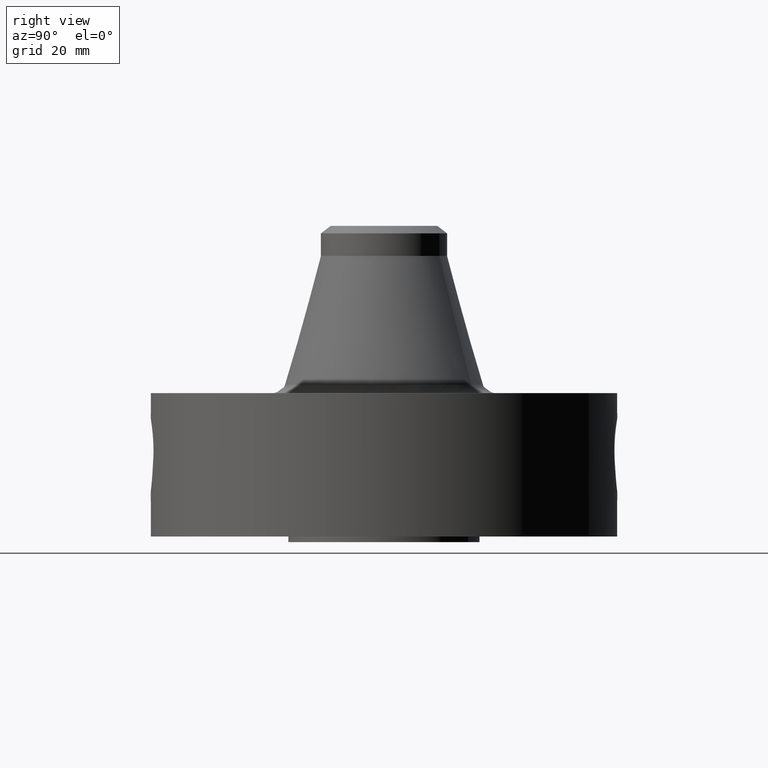
[diagram: clean part render]
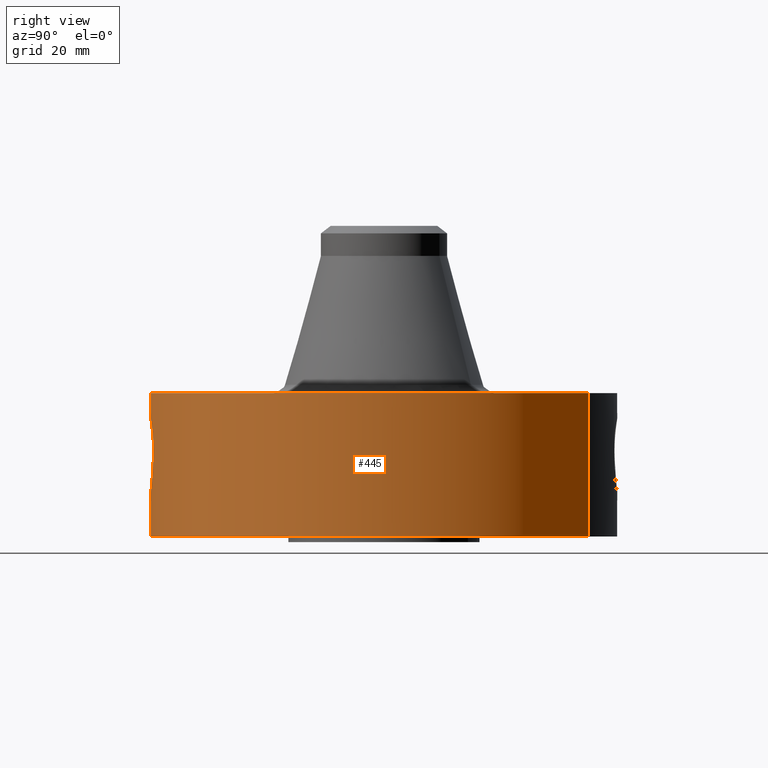
[diagram: same view with one face highlighted and labeled with its STEP entity id]
A machine part, right view. The second image highlights one B-rep face of the part: STEP entity #445.
In plain terms, the highlighted cylindrical surface (partial cylindrical patch) has radius 61.976 mm, axis along (0, 0, -1).
Its self-contained STEP definition (entity closure, byte-faithful):
#38=AXIS2_PLACEMENT_3D('Cylinder Axis2P3D',#35,#36,#37) ;
#200=AXIS2_PLACEMENT_3D('Circle Axis2P3D',#198,#199,$) ;
#318=AXIS2_PLACEMENT_3D('Circle Axis2P3D',#316,#317,$) ;
#35=CARTESIAN_POINT('Axis2P3D Location',(0.,0.,1.65500000001)) ;
#44=CARTESIAN_POINT('Vertex',(-1.1697983142,-2.14130145102,0.0600000000002)) ;
#46=CARTESIAN_POINT('Vertex',(1.1697983142,2.14130145102,0.0600000000002)) ;
#49=CARTESIAN_POINT('Line Origine',(-1.1697983142,-2.14130145102,0.810000000003)) ;
#53=CARTESIAN_POINT('Vertex',(-1.1697983142,-2.14130145102,1.56000000001)) ;
#60=CARTESIAN_POINT('Vertex',(1.1697983142,2.14130145102,1.56000000001)) ;
#63=CARTESIAN_POINT('Line Origine',(1.1697983142,2.14130145102,0.810000000003)) ;
#198=CARTESIAN_POINT('Axis2P3D Location',(0.,0.,0.0600000000002)) ;
#316=CARTESIAN_POINT('Axis2P3D Location',(0.,0.,1.56000000001)) ;
#328=CARTESIAN_POINT('Control Point',(0.16192159428,-2.4346214074,1.25474246112)) ;
#329=CARTESIAN_POINT('Control Point',(0.12476167853,-2.43709283592,1.27394650423)) ;
#330=CARTESIAN_POINT('Control Point',(0.0845285010645,-2.43901250296,1.28730102498)) ;
#331=CARTESIAN_POINT('Control Point',(0.042626626407,-2.43998754964,1.2940330846)) ;
#332=CARTESIAN_POINT('Control Point',(0.000718733829063,-2.43999989415,1.29411849633)) ;
#333=CARTESIAN_POINT('Vertex',(0.161921600554,-2.43462140699,1.25474245804)) ;
#335=CARTESIAN_POINT('Vertex',(0.000718469330927,-2.43999989423,1.29411850216)) ;
#339=CARTESIAN_POINT('Control Point',(0.16989837306,-2.43407776024,1.25094225976)) ;
#340=CARTESIAN_POINT('Control Point',(0.167252431002,-2.43426244672,1.25223769882)) ;
#341=CARTESIAN_POINT('Control Point',(0.164593290178,-2.43444371847,1.25350443879)) ;
#342=CARTESIAN_POINT('Control Point',(0.161921599901,-2.43462140702,1.25474245516)) ;
#343=CARTESIAN_POINT('Vertex',(0.16989837306,-2.43407776024,1.25094225976)) ;
#347=CARTESIAN_POINT('Control Point',(0.328116375832,-2.41783780348,0.808661705007)) ;
#348=CARTESIAN_POINT('Control Point',(0.351266820572,-2.41469613699,0.847920653397)) ;
#349=CARTESIAN_POINT('Control Point',(0.367537068289,-2.41220597774,0.891967145638)) ;
#350=CARTESIAN_POINT('Control Point',(0.374754426076,-2.41102143693,0.939647099964)) ;
#351=CARTESIAN_POINT('Control Point',(0.370017243737,-2.41184047452,1.00871566147)) ;
#352=CARTESIAN_POINT('Control Point',(0.346589033702,-2.41527741307,1.0725719509)) ;
#353=CARTESIAN_POINT('Control Point',(0.337668385423,-2.41655315054,1.09162203602)) ;
#354=CARTESIAN_POINT('Control Point',(0.30776430118,-2.42066054004,1.1438749814)) ;
#355=CARTESIAN_POINT('Control Point',(0.266998882778,-2.42558826776,1.18820864016)) ;
#356=CARTESIAN_POINT('Control Point',(0.236947873255,-2.428785004,1.21314596385)) ;
#357=CARTESIAN_POINT('Control Point',(0.204355865072,-2.4316726309,1.23407205562)) ;
#358=CARTESIAN_POINT('Control Point',(0.16989837306,-2.43407776024,1.25094225976)) ;
#359=CARTESIAN_POINT('Vertex',(0.328116855676,-2.4178375316,0.808661757571)) ;
#363=CARTESIAN_POINT('Control Point',(0.320424227438,-2.41886922229,0.790797428481)) ;
#364=CARTESIAN_POINT('Control Point',(0.323151379818,-2.41850796022,0.796680963761)) ;
#365=CARTESIAN_POINT('Control Point',(0.325717354747,-2.41816336819,0.802639990312)) ;
#366=CARTESIAN_POINT('Control Point',(0.328118233165,-2.41783755143,0.808665582027)) ;
#367=CARTESIAN_POINT('Vertex',(0.320424889206,-2.41886937017,0.790798496527)) ;
#371=CARTESIAN_POINT('Control Point',(0.0268393869742,-2.43985238229,0.530897557486)) ;
#372=CARTESIAN_POINT('Control Point',(0.111814828556,-2.43891761723,0.542087008344)) ;
#373=CARTESIAN_POINT('Control Point',(0.192381472741,-2.43423204041,0.582047115166)) ;
#374=CARTESIAN_POINT('Control Point',(0.253315115574,-2.42735806073,0.644291367866)) ;
#375=CARTESIAN_POINT('Control Point',(0.296042119696,-2.42209908944,0.715167636122)) ;
#376=CARTESIAN_POINT('Control Point',(0.320424558949,-2.41886917837,0.790798572524)) ;
#377=CARTESIAN_POINT('Vertex',(0.0268393869742,-2.43985238229,0.530897557486)) ;
#381=CARTESIAN_POINT('Control Point',(0.0268393869742,-2.43985238229,0.530897557486)) ;
#382=CARTESIAN_POINT('Control Point',(0.0178847963814,-2.43995088649,0.530836461707)) ;
#383=CARTESIAN_POINT('Control Point',(0.00893312393866,-2.44000001,0.530995456445)) ;
#384=CARTESIAN_POINT('Control Point',(-2.72878353948E-006,-2.44000000001,0.531374667804)) ;
#385=CARTESIAN_POINT('Vertex',(-2.72878353754E-006,-2.44000000001,0.531374667804)) ;
#389=CARTESIAN_POINT('Control Point',(-0.165476014271,-2.43438240397,0.565083204059)) ;
#390=CARTESIAN_POINT('Control Point',(-0.112562343707,-2.43797918617,0.544988923625)) ;
#391=CARTESIAN_POINT('Control Point',(-0.0565393148661,-2.43999993678,0.533773914324)) ;
#392=CARTESIAN_POINT('Control Point',(-2.72878353731E-006,-2.44000000001,0.531374667804)) ;
#393=CARTESIAN_POINT('Vertex',(-0.165476014271,-2.43438240397,0.565083204059)) ;
#397=CARTESIAN_POINT('Control Point',(-0.165476014271,-2.43438240397,0.565083204059)) ;
#398=CARTESIAN_POINT('Control Point',(-0.175740725453,-2.43368466499,0.570334729546)) ;
#399=CARTESIAN_POINT('Control Point',(-0.185738859904,-2.43293967132,0.576087631637)) ;
#400=CARTESIAN_POINT('Control Point',(-0.195421989316,-2.43216164063,0.582285375744)) ;
#401=CARTESIAN_POINT('Vertex',(-0.195421989316,-2.43216164063,0.582285375744)) ;
#405=CARTESIAN_POINT('Control Point',(-0.195421989316,-2.43216164063,0.582285375744)) ;
#406=CARTESIAN_POINT('Control Point',(-0.247998255526,-2.42793718516,0.61593712418)) ;
#407=CARTESIAN_POINT('Control Point',(-0.293011536391,-2.42289055424,0.660601235601)) ;
#408=CARTESIAN_POINT('Control Point',(-0.328229760174,-2.41805808128,0.712425717438)) ;
#409=CARTESIAN_POINT('Control Point',(-0.382261864301,-2.41005605017,0.829676974245)) ;
#410=CARTESIAN_POINT('Control Point',(-0.395270513625,-2.40773032595,0.958065769538)) ;
#411=CARTESIAN_POINT('Control Point',(-0.390965855309,-2.40847371399,1.0256177461)) ;
#412=CARTESIAN_POINT('Control Point',(-0.375402852348,-2.41110143503,1.09202151237)) ;
#413=CARTESIAN_POINT('Control Point',(-0.348525615673,-2.4149803095,1.15442637902)) ;
#414=CARTESIAN_POINT('Vertex',(-0.348525615673,-2.4149803095,1.15442637902)) ;
#418=CARTESIAN_POINT('Control Point',(-0.348525615673,-2.4149803095,1.15442637902)) ;
#419=CARTESIAN_POINT('Control Point',(-0.294301956472,-2.42280577049,1.21385963823)) ;
#420=CARTESIAN_POINT('Control Point',(-0.226049836573,-2.43110253319,1.25810660709)) ;
#421=CARTESIAN_POINT('Control Point',(-0.151999424149,-2.43708486052,1.28575229226)) ;
#422=CARTESIAN_POINT('Control Point',(-0.0753413751147,-2.44000079858,1.29784713552)) ;
#423=CARTESIAN_POINT('Control Point',(2.58579354729E-005,-2.43999999987,1.29415298447)) ;
#424=CARTESIAN_POINT('Vertex',(2.58579354723E-005,-2.43999999987,1.29415298447)) ;
#428=CARTESIAN_POINT('Control Point',(0.000718469314804,-2.43999989423,1.29411850215)) ;
#429=CARTESIAN_POINT('Control Point',(0.000372184904074,-2.4399999962,1.29413600915)) ;
#430=CARTESIAN_POINT('Control Point',(2.58579482142E-005,-2.43999999987,1.29415298447)) ;
#36=DIRECTION('Axis2P3D Direction',(0.,0.,-0.0393700787402)) ;
#37=DIRECTION('Axis2P3D XDirection',(0.0188750212049,0.0345504945626,0.)) ;
#50=DIRECTION('Vector Direction',(0.,0.,-0.0393700787402)) ;
#64=DIRECTION('Vector Direction',(0.,0.,-0.0393700787402)) ;
#199=DIRECTION('Axis2P3D Direction',(0.,0.,-0.0393700787402)) ;
#317=DIRECTION('Axis2P3D Direction',(0.,0.,-0.0393700787402)) ;
#51=VECTOR('Line Direction',#50,0.0393700787402) ;
#65=VECTOR('Line Direction',#64,0.0393700787402) ;
#322=ORIENTED_EDGE('',*,*,#202,.F.) ;
#323=ORIENTED_EDGE('',*,*,#67,.T.) ;
#324=ORIENTED_EDGE('',*,*,#320,.T.) ;
#325=ORIENTED_EDGE('',*,*,#55,.F.) ;
#433=ORIENTED_EDGE('',*,*,#337,.F.) ;
#434=ORIENTED_EDGE('',*,*,#345,.F.) ;
#435=ORIENTED_EDGE('',*,*,#361,.F.) ;
#436=ORIENTED_EDGE('',*,*,#369,.F.) ;
#437=ORIENTED_EDGE('',*,*,#379,.F.) ;
#438=ORIENTED_EDGE('',*,*,#387,.T.) ;
#439=ORIENTED_EDGE('',*,*,#395,.F.) ;
#440=ORIENTED_EDGE('',*,*,#403,.T.) ;
#441=ORIENTED_EDGE('',*,*,#416,.T.) ;
#442=ORIENTED_EDGE('',*,*,#426,.T.) ;
#443=ORIENTED_EDGE('',*,*,#431,.F.) ;
#444=FACE_BOUND('',#432,.T.) ;
#445=ADVANCED_FACE('PartBody',(#326,#444),#39,.T.) ;
#327=B_SPLINE_CURVE_WITH_KNOTS('',4,(#328,#329,#330,#331,#332),.UNSPECIFIED.,.F.,.U.,(5,5),(0.175518252428,6.37462366398),.UNSPECIFIED.) ;
#338=B_SPLINE_CURVE_WITH_KNOTS('',3,(#339,#340,#341,#342),.UNSPECIFIED.,.F.,.U.,(4,4),(0.,0.330159466825),.UNSPECIFIED.) ;
#346=B_SPLINE_CURVE_WITH_KNOTS('',5,(#347,#348,#349,#350,#351,#352,#353,#354,#355,#356,#357,#358),.UNSPECIFIED.,.F.,.U.,(6,3,3,6),(0.,8.53095212055,12.3556762986,19.5216604215),.UNSPECIFIED.) ;
#362=B_SPLINE_CURVE_WITH_KNOTS('',3,(#363,#364,#365,#366),.UNSPECIFIED.,.F.,.U.,(4,4),(9.56540750371,10.2865901374),.UNSPECIFIED.) ;
#370=B_SPLINE_CURVE_WITH_KNOTS('',5,(#371,#372,#373,#374,#375,#376),.UNSPECIFIED.,.F.,.U.,(6,6),(0.,14.898955716),.UNSPECIFIED.) ;
#380=B_SPLINE_CURVE_WITH_KNOTS('',3,(#381,#382,#383,#384),.UNSPECIFIED.,.F.,.U.,(4,4),(0.,0.933901051561),.UNSPECIFIED.) ;
#388=B_SPLINE_CURVE_WITH_KNOTS('',3,(#389,#390,#391,#392),.UNSPECIFIED.,.F.,.U.,(4,4),(0.,5.90873404335),.UNSPECIFIED.) ;
#396=B_SPLINE_CURVE_WITH_KNOTS('',3,(#397,#398,#399,#400),.UNSPECIFIED.,.F.,.U.,(4,4),(0.,1.203436921),.UNSPECIFIED.) ;
#404=B_SPLINE_CURVE_WITH_KNOTS('',5,(#405,#406,#407,#408,#409,#410,#411,#412,#413),.UNSPECIFIED.,.F.,.U.,(6,3,6),(0.,10.8904564295,22.7389374481),.UNSPECIFIED.) ;
#417=B_SPLINE_CURVE_WITH_KNOTS('',5,(#418,#419,#420,#421,#422,#423),.UNSPECIFIED.,.F.,.U.,(6,6),(0.,14.0876899546),.UNSPECIFIED.) ;
#427=B_SPLINE_CURVE_WITH_KNOTS('',2,(#428,#429,#430),.UNSPECIFIED.,.F.,.U.,(3,3),(1.28066519652,1.30655945912),.UNSPECIFIED.) ;
#201=CIRCLE('generated circle',#200,2.44000000001) ;
#319=CIRCLE('generated circle',#318,2.44000000001) ;
#39=CYLINDRICAL_SURFACE('generated cylinder',#38,2.44000000001) ;
#55=EDGE_CURVE('',#45,#54,#52,.F.) ;
#67=EDGE_CURVE('',#47,#61,#66,.F.) ;
#202=EDGE_CURVE('',#47,#45,#201,.T.) ;
#320=EDGE_CURVE('',#61,#54,#319,.T.) ;
#337=EDGE_CURVE('',#334,#336,#327,.T.) ;
#345=EDGE_CURVE('',#344,#334,#338,.T.) ;
#361=EDGE_CURVE('',#360,#344,#346,.T.) ;
#369=EDGE_CURVE('',#368,#360,#362,.T.) ;
#379=EDGE_CURVE('',#378,#368,#370,.T.) ;
#387=EDGE_CURVE('',#378,#386,#380,.T.) ;
#395=EDGE_CURVE('',#394,#386,#388,.T.) ;
#403=EDGE_CURVE('',#394,#402,#396,.T.) ;
#416=EDGE_CURVE('',#402,#415,#404,.T.) ;
#426=EDGE_CURVE('',#415,#425,#417,.T.) ;
#431=EDGE_CURVE('',#336,#425,#427,.T.) ;
#321=EDGE_LOOP('',(#322,#323,#324,#325)) ;
#432=EDGE_LOOP('',(#433,#434,#435,#436,#437,#438,#439,#440,#441,#442,#443)) ;
#326=FACE_OUTER_BOUND('',#321,.T.) ;
#52=LINE('Line',#49,#51) ;
#66=LINE('Line',#63,#65) ;
#45=VERTEX_POINT('',#44) ;
#47=VERTEX_POINT('',#46) ;
#54=VERTEX_POINT('',#53) ;
#61=VERTEX_POINT('',#60) ;
#334=VERTEX_POINT('',#333) ;
#336=VERTEX_POINT('',#335) ;
#344=VERTEX_POINT('',#343) ;
#360=VERTEX_POINT('',#359) ;
#368=VERTEX_POINT('',#367) ;
#378=VERTEX_POINT('',#377) ;
#386=VERTEX_POINT('',#385) ;
#394=VERTEX_POINT('',#393) ;
#402=VERTEX_POINT('',#401) ;
#415=VERTEX_POINT('',#414) ;
#425=VERTEX_POINT('',#424) ;